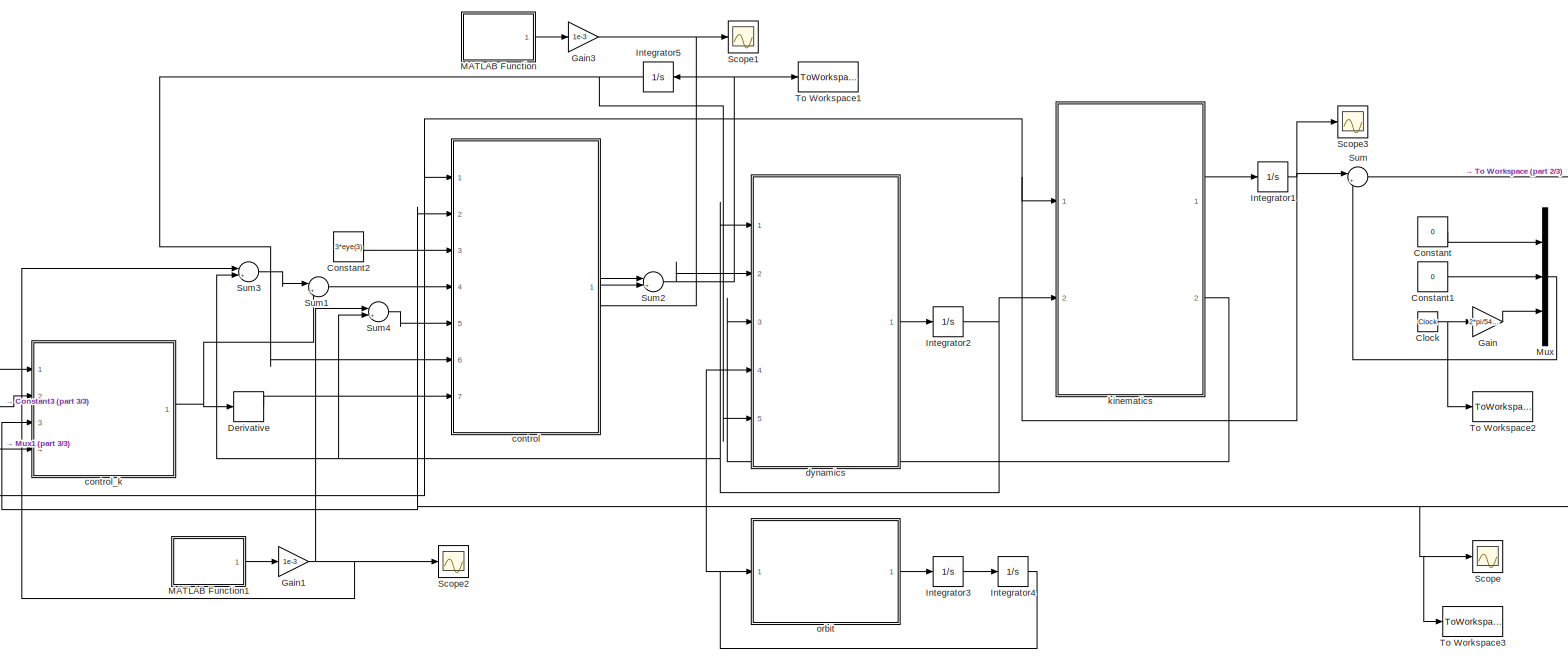
[diagram: root canvas - part 1/3, most of the canvas]
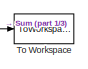
[diagram: root canvas - part 2/3, top right region]
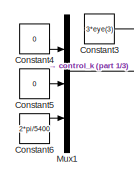
[diagram: root canvas - part 3/3, bottom left region]
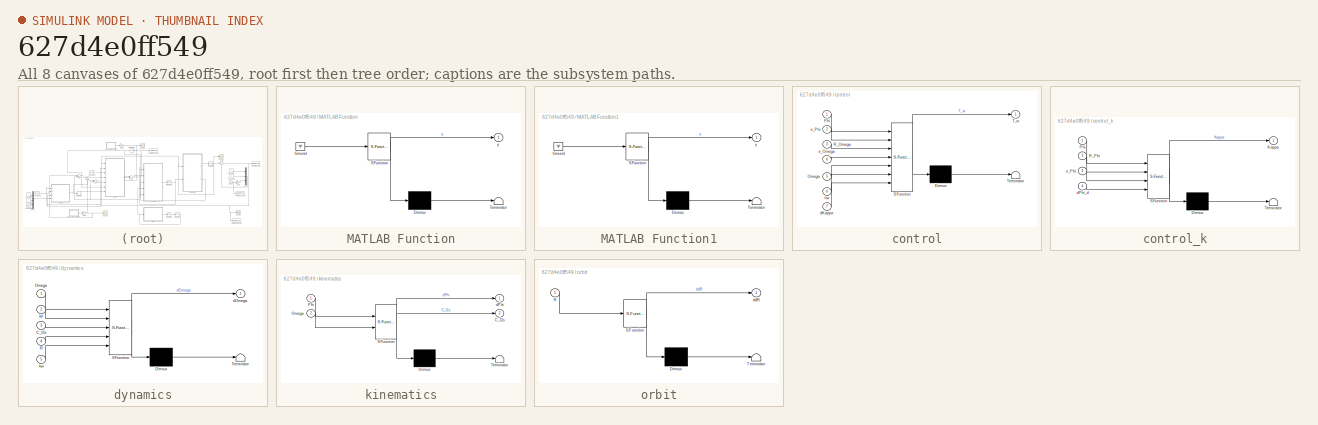
[diagram: thumbnail index - all 8 canvases of the model, root first then tree order]
MODEL slx_627d4e0ff549
KIND model
CONFIG AbsTol = auto
CONFIG EnableMultiTasking = off
CONFIG FixedStep = 0.001
CONFIG MaxStep = auto
CONFIG MinStep = auto
CONFIG RelTol = 1e-3
CONFIG SampleTimeConstraint = Unconstrained
CONFIG Solver = FixedStepAuto
CONFIG SolverName = FixedStepAuto
CONFIG StartTime = 0.0
CONFIG StopTime = 100
BLOCK [Clock] Clock
BLOCK [Constant] Constant
  Value = 0
BLOCK [Constant] Constant1
  Value = 0
BLOCK [Constant] Constant2
  Value = 3*eye(3)
BLOCK [Constant] Constant3
  Value = 3*eye(3)
BLOCK [Constant] Constant4
  Value = 0
BLOCK [Constant] Constant5
  Value = 0
BLOCK [Constant] Constant6
  Value = 2*pi/5400
BLOCK [Derivative] Derivative
BLOCK [Gain] Gain
  Gain = 2*pi/5400
  OutDataTypeStr = Inherit: Inherit via internal rule
  ParamDataTypeStr = Inherit: Inherit via internal rule
  SaturateOnIntegerOverflow = off
BLOCK [Gain] Gain1
  Gain = 1e-3
  OutDataTypeStr = Inherit: Inherit via internal rule
  ParamDataTypeStr = Inherit: Inherit via internal rule
  SaturateOnIntegerOverflow = off
BLOCK [Gain] Gain3
  Gain = 1e-3
  OutDataTypeStr = Inherit: Inherit via internal rule
  ParamDataTypeStr = Inherit: Inherit via internal rule
  SaturateOnIntegerOverflow = off
BLOCK [Integrator] Integrator1
  InitialCondition = [0 0 0]'
  Ports = [1, 1]
BLOCK [Integrator] Integrator2
  InitialCondition = [0 0 0]'
  Ports = [1, 1]
BLOCK [Integrator] Integrator3
  InitialCondition = [0 sqrt(3.986e14/6871393) 0]'
  Ports = [1, 1]
BLOCK [Integrator] Integrator4
  InitialCondition = [6871393 0 0]'
  Ports = [1, 1]
BLOCK [Integrator] Integrator5
  InitialCondition = [0.0015 0.0015 0.0015]'
  Ports = [1, 1]
BLOCK [SubSystem] MATLAB Function
  ErrorFcn = Stateflow.Translate.translate
  PermitHierarchicalResolution = ExplicitOnly
  Ports = [0, 1]
  RequestExecContextInheritance = off
  SFBlockType = MATLAB Function
  TreatAsAtomicUnit = on
BLOCK [Demux] MATLAB Function/ Demux 
  Outputs = 1
  Ports = [1, 1]
BLOCK [Ground] MATLAB Function/ Ground 
BLOCK [S-Function] MATLAB Function/ SFunction 
  EnableBusSupport = on
  FunctionName = sf_sfun
  PortCounts = [1 2]
  Ports = [1, 2]
  SFcnIsStateOwnerBlock = off
  SFunctionDeploymentMode = off
  Tag = Stateflow S-Function SAT_CONTROL 5
BLOCK [Terminator] MATLAB Function/ Terminator 
BLOCK [Outport] MATLAB Function/y
  IconDisplay = Port number
BLOCK [SubSystem] MATLAB Function1
  ErrorFcn = Stateflow.Translate.translate
  PermitHierarchicalResolution = ExplicitOnly
  Ports = [0, 1]
  RequestExecContextInheritance = off
  SFBlockType = MATLAB Function
  TreatAsAtomicUnit = on
BLOCK [Demux] MATLAB Function1/ Demux 
  Outputs = 1
  Ports = [1, 1]
BLOCK [Ground] MATLAB Function1/ Ground 
BLOCK [S-Function] MATLAB Function1/ SFunction 
  EnableBusSupport = on
  FunctionName = sf_sfun
  PortCounts = [1 2]
  Ports = [1, 2]
  SFcnIsStateOwnerBlock = off
  SFunctionDeploymentMode = off
  Tag = Stateflow S-Function SAT_CONTROL 6
BLOCK [Terminator] MATLAB Function1/ Terminator 
BLOCK [Outport] MATLAB Function1/y
  IconDisplay = Port number
BLOCK [Mux] Mux
  DisplayOption = bar
  Inputs = 3
  Ports = [3, 1]
BLOCK [Mux] Mux1
  DisplayOption = bar
  Inputs = 3
  Ports = [3, 1]
BLOCK [Scope] Scope
  Floating = off
  NumInputPorts = 1
  Ports = [1]
  ScopeSpecificationString = Simulink.scopes.TimeScopeBlockCfg('CurrentConfiguration', extmgr.ConfigurationSet(extmgr.Configuration('Core','General UI',true),extmgr.Configuration('Core','Source UI',true),extmgr.Configuration('Sources','WiredSimulink',true),extmgr.Configuration('Visuals','Time Domain',true,'SerializedDisplays',{struct('MinYLimReal','-0.0002','MaxYLimReal','0.00004','YLabelReal','','MinYLimMag','0.00000','MaxYL...<+1747ch>
BLOCK [Scope] Scope1
  Floating = off
  NumInputPorts = 1
  Ports = [1]
  ScopeSpecificationString = Simulink.scopes.TimeScopeBlockCfg('CurrentConfiguration', extmgr.ConfigurationSet(extmgr.Configuration('Core','General UI',true),extmgr.Configuration('Core','Source UI',true),extmgr.Configuration('Sources','WiredSimulink',true,'DataLoggingVariableName','ScopeData1'),extmgr.Configuration('Visuals','Time Domain',true,'SerializedDisplays',{struct('MinYLimReal','-0.00458','MaxYLimReal','0.00497','YLab...<+1395ch>
BLOCK [Scope] Scope2
  Floating = off
  NumInputPorts = 1
  Ports = [1]
  ScopeSpecificationString = Simulink.scopes.TimeScopeBlockCfg('CurrentConfiguration', extmgr.ConfigurationSet(extmgr.Configuration('Core','General UI',true),extmgr.Configuration('Core','Source UI',true),extmgr.Configuration('Sources','WiredSimulink',true,'DataLoggingVariableName','ScopeData2'),extmgr.Configuration('Visuals','Time Domain',true,'SerializedDisplays',{struct('MinYLimReal','-0.00458','MaxYLimReal','0.00497','YLab...<+1395ch>
BLOCK [Scope] Scope3
  Floating = off
  NumInputPorts = 1
  Ports = [1]
  ScopeSpecificationString = Simulink.scopes.TimeScopeBlockCfg('CurrentConfiguration', extmgr.ConfigurationSet(extmgr.Configuration('Core','General UI',true),extmgr.Configuration('Core','Source UI',true),extmgr.Configuration('Sources','WiredSimulink',true,'DataLoggingVariableName','ScopeData1'),extmgr.Configuration('Visuals','Time Domain',true,'SerializedDisplays',{struct('MinYLimReal','-0.01457','MaxYLimReal','0.1309','YLabe...<+1786ch>
BLOCK [Sum] Sum
  IconShape = round
  InputSameDT = off
  Inputs = |+-
  OutDataTypeStr = Inherit: Inherit via internal rule
  Ports = [2, 1]
  SaturateOnIntegerOverflow = off
BLOCK [Sum] Sum1
  IconShape = round
  InputSameDT = off
  Inputs = |+-
  OutDataTypeStr = Inherit: Inherit via internal rule
  Ports = [2, 1]
  SaturateOnIntegerOverflow = off
BLOCK [Sum] Sum2
  InputSameDT = off
  Inputs = |++
  OutDataTypeStr = Inherit: Inherit via internal rule
  Ports = [2, 1]
  SaturateOnIntegerOverflow = off
BLOCK [Sum] Sum3
  InputSameDT = off
  Inputs = |++
  OutDataTypeStr = Inherit: Inherit via internal rule
  Ports = [2, 1]
  SaturateOnIntegerOverflow = off
BLOCK [Sum] Sum4
  InputSameDT = off
  Inputs = |++
  OutDataTypeStr = Inherit: Inherit via internal rule
  Ports = [2, 1]
  SaturateOnIntegerOverflow = off
BLOCK [ToWorkspace] To Workspace
  FixptAsFi = on
  MaxDataPoints = inf
  Ports = [1]
  SampleTime = -1
  Save2DSignal = 3-D array (concatenate along third dimension)
  VariableName = e_PHI
BLOCK [ToWorkspace] To Workspace1
  FixptAsFi = on
  MaxDataPoints = inf
  Ports = [1]
  SampleTime = -1
  Save2DSignal = 3-D array (concatenate along third dimension)
  VariableName = T_w
BLOCK [ToWorkspace] To Workspace2
  FixptAsFi = on
  MaxDataPoints = inf
  Ports = [1]
  SampleTime = -1
  Save2DSignal = 3-D array (concatenate along third dimension)
  VariableName = t
BLOCK [ToWorkspace] To Workspace3
  FixptAsFi = on
  MaxDataPoints = inf
  Ports = [1]
  SampleTime = -1
  Save2DSignal = 3-D array (concatenate along third dimension)
  SaveFormat = Timeseries
  VariableName = simout
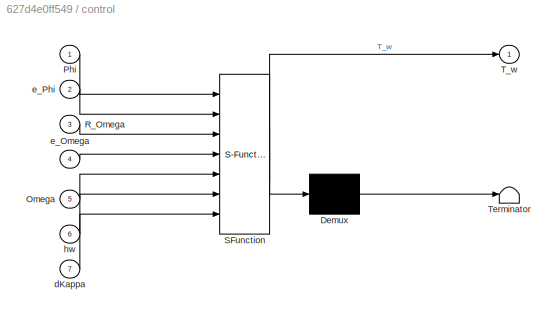
BLOCK [SubSystem] control
  ErrorFcn = Stateflow.Translate.translate
  PermitHierarchicalResolution = ExplicitOnly
  Ports = [7, 1]
  RequestExecContextInheritance = off
  SFBlockType = MATLAB Function
  TreatAsAtomicUnit = on
BLOCK [Demux] control/ Demux 
  Outputs = 1
  Ports = [1, 1]
BLOCK [S-Function] control/ SFunction 
  EnableBusSupport = on
  FunctionName = sf_sfun
  PortCounts = [7 2]
  Ports = [7, 2]
  SFcnIsStateOwnerBlock = off
  SFunctionDeploymentMode = off
  Tag = Stateflow S-Function SAT_CONTROL 3
BLOCK [Terminator] control/ Terminator 
BLOCK [Inport] control/Omega
  IconDisplay = Port number
  Port = 5
BLOCK [Inport] control/Phi
  IconDisplay = Port number
BLOCK [Inport] control/R_Omega
  IconDisplay = Port number
  Port = 3
BLOCK [Outport] control/T_w
  IconDisplay = Port number
BLOCK [Inport] control/dKappa
  IconDisplay = Port number
  Port = 7
BLOCK [Inport] control/e_Omega
  IconDisplay = Port number
  Port = 4
BLOCK [Inport] control/e_Phi
  IconDisplay = Port number
  Port = 2
BLOCK [Inport] control/hw
  IconDisplay = Port number
  Port = 6
BLOCK [SubSystem] control_k
  ErrorFcn = Stateflow.Translate.translate
  PermitHierarchicalResolution = ExplicitOnly
  Ports = [4, 1]
  RequestExecContextInheritance = off
  SFBlockType = MATLAB Function
  TreatAsAtomicUnit = on
BLOCK [Demux] control_k/ Demux 
  Outputs = 1
  Ports = [1, 1]
BLOCK [S-Function] control_k/ SFunction 
  EnableBusSupport = on
  FunctionName = sf_sfun
  PortCounts = [4 2]
  Ports = [4, 2]
  SFcnIsStateOwnerBlock = off
  SFunctionDeploymentMode = off
  Tag = Stateflow S-Function SAT_CONTROL 4
BLOCK [Terminator] control_k/ Terminator 
BLOCK [Outport] control_k/Kappa
  IconDisplay = Port number
BLOCK [Inport] control_k/Phi
  IconDisplay = Port number
BLOCK [Inport] control_k/R_Phi
  IconDisplay = Port number
  Port = 2
BLOCK [Inport] control_k/dPhi_d
  IconDisplay = Port number
  Port = 4
BLOCK [Inport] control_k/e_Phi
  IconDisplay = Port number
  Port = 3
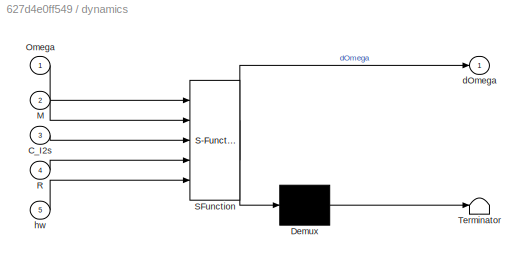
BLOCK [SubSystem] dynamics
  ErrorFcn = Stateflow.Translate.translate
  PermitHierarchicalResolution = ExplicitOnly
  Ports = [5, 1]
  RequestExecContextInheritance = off
  SFBlockType = MATLAB Function
  TreatAsAtomicUnit = on
BLOCK [Demux] dynamics/ Demux 
  Outputs = 1
  Ports = [1, 1]
BLOCK [S-Function] dynamics/ SFunction 
  EnableBusSupport = on
  FunctionName = sf_sfun
  PortCounts = [5 2]
  Ports = [5, 2]
  SFcnIsStateOwnerBlock = off
  SFunctionDeploymentMode = off
  Tag = Stateflow S-Function SAT_CONTROL 2
BLOCK [Terminator] dynamics/ Terminator 
BLOCK [Inport] dynamics/C_I2s
  IconDisplay = Port number
  Port = 3
BLOCK [Inport] dynamics/M
  IconDisplay = Port number
  Port = 2
BLOCK [Inport] dynamics/Omega
  IconDisplay = Port number
BLOCK [Inport] dynamics/R
  IconDisplay = Port number
  Port = 4
BLOCK [Outport] dynamics/dOmega
  IconDisplay = Port number
BLOCK [Inport] dynamics/hw
  IconDisplay = Port number
  Port = 5
BLOCK [SubSystem] kinematics
  ErrorFcn = Stateflow.Translate.translate
  PermitHierarchicalResolution = ExplicitOnly
  Ports = [2, 2]
  RequestExecContextInheritance = off
  SFBlockType = MATLAB Function
  TreatAsAtomicUnit = on
BLOCK [Demux] kinematics/ Demux 
  Outputs = 1
  Ports = [1, 1]
BLOCK [S-Function] kinematics/ SFunction 
  EnableBusSupport = on
  FunctionName = sf_sfun
  PortCounts = [2 3]
  Ports = [2, 3]
  SFcnIsStateOwnerBlock = off
  SFunctionDeploymentMode = off
  Tag = Stateflow S-Function SAT_CONTROL 8
BLOCK [Terminator] kinematics/ Terminator 
BLOCK [Outport] kinematics/C_I2s
  IconDisplay = Port number
  Port = 2
BLOCK [Inport] kinematics/Omega
  IconDisplay = Port number
  Port = 2
BLOCK [Inport] kinematics/Phi
  IconDisplay = Port number
BLOCK [Outport] kinematics/dPhi
  IconDisplay = Port number
BLOCK [SubSystem] orbit
  ErrorFcn = Stateflow.Translate.translate
  PermitHierarchicalResolution = ExplicitOnly
  Ports = [1, 1]
  RequestExecContextInheritance = off
  SFBlockType = MATLAB Function
  TreatAsAtomicUnit = on
BLOCK [Demux] orbit/ Demux 
  Outputs = 1
  Ports = [1, 1]
BLOCK [S-Function] orbit/ SFunction 
  EnableBusSupport = on
  FunctionName = sf_sfun
  PortCounts = [1 2]
  Ports = [1, 2]
  SFcnIsStateOwnerBlock = off
  SFunctionDeploymentMode = off
  Tag = Stateflow S-Function SAT_CONTROL 1
BLOCK [Terminator] orbit/ Terminator 
BLOCK [Inport] orbit/R
  IconDisplay = Port number
BLOCK [Outport] orbit/ddR
  IconDisplay = Port number
NET Clock:1 -> Gain:1, To Workspace2:1
LINE Constant1:1 -> Mux:2
LINE Constant2:1 -> control:3
LINE Constant3:1 -> control_k:2
LINE Constant4:1 -> Mux1:1
LINE Constant5:1 -> Mux1:2
LINE Constant6:1 -> Mux1:3
LINE Constant:1 -> Mux:1
LINE Derivative:1 -> control:7
NET Gain1:1 -> Scope2:1, Sum3:1, Sum4:1
NET Gain3:1 -> Scope1:1, Sum2:1
LINE Gain:1 -> Mux:3
NET Integrator1:1 -> Scope3:1, Sum:1, control:1, control_k:1, kinematics:1
NET Integrator2:1 -> Sum3:2, Sum4:2, dynamics:1, kinematics:2
LINE Integrator3:1 -> Integrator4:1
NET Integrator4:1 -> dynamics:4, orbit:1
NET Integrator5:1 -> control:6, dynamics:5
LINE MATLAB Function1:1 -> Gain1:1
LINE MATLAB Function:1 -> Gain3:1
LINE Mux1:1 -> control_k:4
LINE Mux:1 -> Sum:2
LINE Sum1:1 -> control:4
NET Sum2:1 -> Integrator5:1, To Workspace1:1, dynamics:2
LINE Sum3:1 -> Sum1:1
LINE Sum4:1 -> control:5
NET Sum:1 -> Scope:1, To Workspace3:1, To Workspace:1, control:2, control_k:3
LINE control:1 -> Sum2:2
NET control_k:1 -> Derivative:1, Sum1:2
LINE dynamics:1 -> Integrator2:1
LINE kinematics:1 -> Integrator1:1
LINE kinematics:2 -> dynamics:3
LINE orbit:1 -> Integrator3:1
note: NET lines group one-source signal fan-out (src -> all destinations, sorted); 1:1 wires keep LINE
CHART orbit states=1 transitions=1
  STATE_LABEL 'eML_blk_kernel()'
  STATE_LABEL 'SCRIPT:\nfunction ddR  = orbit(R)\n\nmu=3.986e14;\nddR=-mu/norm(R)^2;\nend\n'
CHART dynamics states=1 transitions=1
  STATE_LABEL 'eML_blk_kernel()'
  STATE_LABEL 'SCRIPT:\nfunction dOmega   = dynamics(Omega,M,C_I2s,R,hw)\n%航天器小角度近似姿态动力学模型 圆轨道假设、小角度假设\n%Y = [滚转角速度，偏航角速度，俯仰角速度，滚转角，偏航角，俯仰角]，Cx(滚转) Cz(俯仰) Cy(偏航)\n%主轴转动惯量\nIx = 0.533;\nIy = 0.533*2;\nIz = 0.533*3;\nJ=diag([Ix Iy Iz]);\nmu = 3.986e14;%地球引力常数m^3/s^-2\nRs=C_I2s*R;\n%动力学模型\nMe=3*mu/(norm(Rs)^5)*cross(Rs,J*Rs);\ndOmega=J\\(-cross(Omega,J*Omega+hw)+M+Me);\nend\n'
CHART control states=1 transitions=1
  STATE_LABEL 'eML_blk_kernel()'
  STATE_LABEL "SCRIPT:\nfunction T_w  = control(Phi,e_Phi,R_Omega,e_Omega,Omega,hw,dKappa)\nphi=Phi(1);\ntheta=Phi(2);\npsi=Phi(3);\nIx = 0.533;\nIy = 0.533*2;\nIz = 0.533*3;\nJ=diag([Ix Iy Iz]);\nF=[1 sin(phi)*tan(theta) cos(phi)*tan(theta)\n   0 cos(phi) -sin(phi)\n   0 sin(phi)/cos(theta) cos(phi)/cos(theta)];\nT_w=-F'*e_Phi-R_Omega*e_Omega+cross(Omega,J*Omega+hw)+J*dKappa;\nend\n"
CHART control_k states=1 transitions=1
  STATE_LABEL 'eML_blk_kernel()'
  STATE_LABEL 'SCRIPT:\nfunction Kappa  = control_k(Phi,R_Phi,e_Phi,dPhi_d)\nphi=Phi(1);\ntheta=Phi(2);\nF=[1 sin(phi)*tan(theta) cos(phi)*tan(theta)\n   0 cos(phi) -sin(phi)\n   0 sin(phi)/cos(theta) cos(phi)/cos(theta)];\nKappa=F\\(dPhi_d-R_Phi*e_Phi);\nend\n'
CHART MATLAB Function states=1 transitions=1
  STATE_LABEL 'eML_blk_kernel()'
  STATE_LABEL 'SCRIPT:\nfunction y = disturb()\ny=wgn(1,1,1);\n'
CHART MATLAB Function1 states=1 transitions=1
  STATE_LABEL 'eML_blk_kernel()'
  STATE_LABEL 'SCRIPT:\nfunction y = disturb()\ny=wgn(1,1,1);\n'
CHART kinematics states=1 transitions=1
  STATE_LABEL 'eML_blk_kernel()'
  STATE_LABEL 'SCRIPT:\nfunction [dPhi, C_I2s]  = kinematics(Phi,Omega)\nphi=Phi(1);\ntheta=Phi(2);\npsi=Phi(3);\nF=[1 sin(phi)*tan(theta) cos(phi)*tan(theta)\n   0 cos(phi) -sin(phi)\n   0 sin(phi)/cos(theta) cos(phi)/cos(theta)];\ndPhi=F*Omega;\nC_3=[cos(psi) sin(psi) 0\n     -sin(psi) cos(psi) 0\n     0 0 1];\nC_2=[cos(theta) 0 -sin(theta)\n     0 1 0\n     sin(theta) 0 cos(theta)];\nC_1=[1 0 0\n     0 cos(phi) sin(phi)\n    ...<+48ch>'
